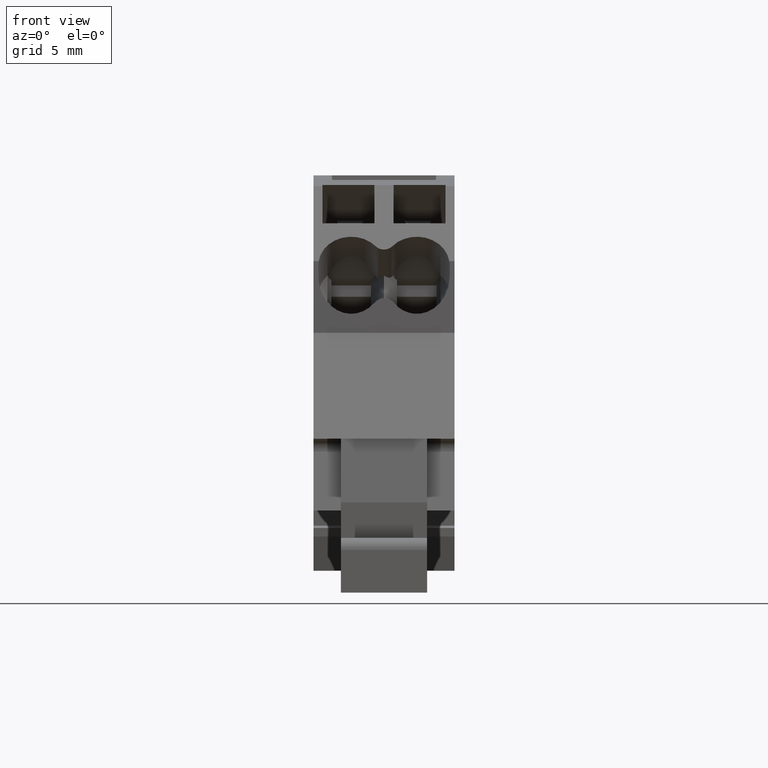
[diagram: clean part render]
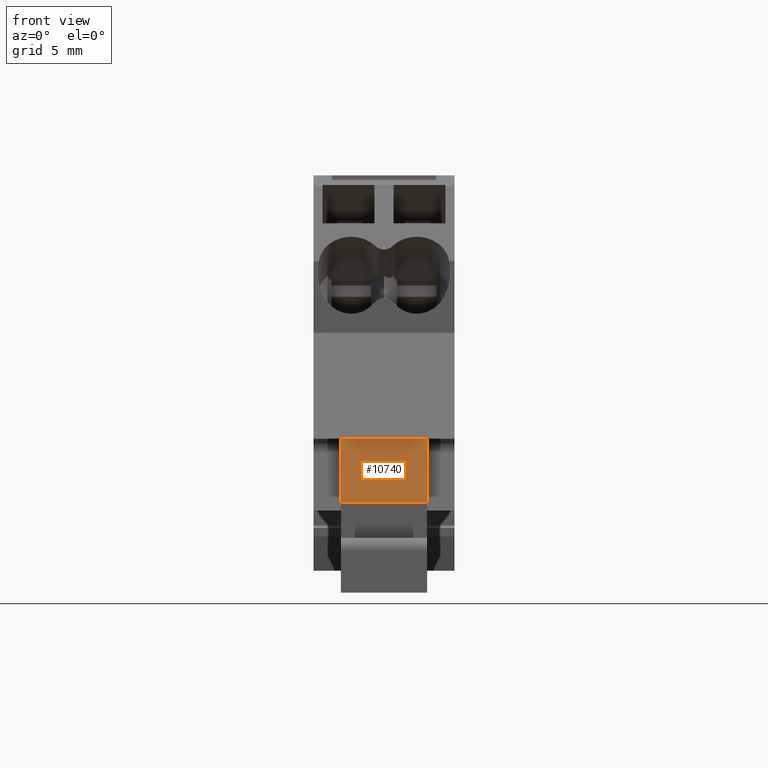
[diagram: same view with one face highlighted and labeled with its STEP entity id]
A machine part, front view. The second image highlights one B-rep face of the part: STEP entity #10740.
In plain terms, the highlighted planar face has unit normal (0, 0.9848, -0.1736).
Its self-contained STEP definition (entity closure, byte-faithful):
#5570=CARTESIAN_POINT('',(90.090608649205,131.035578303862,
1.60000000000238));
#5580=VERTEX_POINT('',#5570);
#5610=CARTESIAN_POINT('',(90.090608649205,131.035578303862,
-1.12132525487141E-14));
#5620=DIRECTION('',(-4.71405901402825E-17,2.72166324069634E-17,1.));
#5630=VECTOR('',#5620,1.);
#5640=LINE('',#5610,#5630);
#5650=CARTESIAN_POINT('',(90.090608649205,131.035578303862,
7.90000000000238));
#5660=VERTEX_POINT('',#5650);
#5670=EDGE_CURVE('',#5580,#5660,#5640,.T.);
#7230=CARTESIAN_POINT('',(94.525036329955,129.421578622062,
-1.11993747609063E-14));
#7240=DIRECTION('',(-4.71405901402825E-17,2.72166324069634E-17,1.));
#7250=VECTOR('',#7240,1.);
#7260=LINE('',#7230,#7250);
#7270=CARTESIAN_POINT('',(94.525036329955,129.421578622062,
1.60000000000285));
#7280=VERTEX_POINT('',#7270);
#7290=CARTESIAN_POINT('',(94.5250363299552,129.421578622062,
7.90000000000285));
#7300=VERTEX_POINT('',#7290);
#7310=EDGE_CURVE('',#7280,#7300,#7260,.T.);
#7780=CARTESIAN_POINT('',(79.6226566744847,134.845601236391,
7.90000000000129));
#7790=DIRECTION('',(-0.939692620785839,0.342020143325861,
-9.80585437999967E-14));
#7800=VECTOR('',#7790,1.);
#7810=LINE('',#7780,#7800);
#7820=EDGE_CURVE('',#7300,#5660,#7810,.T.);
#8980=CARTESIAN_POINT('',(79.6226566744847,134.845601236391,
1.60000000000129));
#8990=DIRECTION('',(0.939692620785839,-0.342020143325861,
9.80585437999967E-14));
#9000=VECTOR('',#8990,1.);
#9010=LINE('',#8980,#9000);
#9020=EDGE_CURVE('',#5580,#7280,#9010,.T.);
#10630=CARTESIAN_POINT('',(94.5250363299552,129.421578622062,
-0.400000000000007));
#10640=DIRECTION('',(-0.342020143325861,-0.939692620785838,
9.4522372392191E-18));
#10650=DIRECTION('',(0.939692620785839,-0.342020143325861,
5.36063012109538E-17));
#10660=AXIS2_PLACEMENT_3D('',#10630,#10640,#10650);
#10670=PLANE('',#10660);
#10680=ORIENTED_EDGE('',*,*,#5670,.T.);
#10690=ORIENTED_EDGE('',*,*,#9020,.F.);
#10700=ORIENTED_EDGE('',*,*,#7310,.F.);
#10710=ORIENTED_EDGE('',*,*,#7820,.F.);
#10720=EDGE_LOOP('',(#10710,#10700,#10690,#10680));
#10730=FACE_OUTER_BOUND('',#10720,.T.);
#10740=ADVANCED_FACE('',(#10730),#10670,.F.);